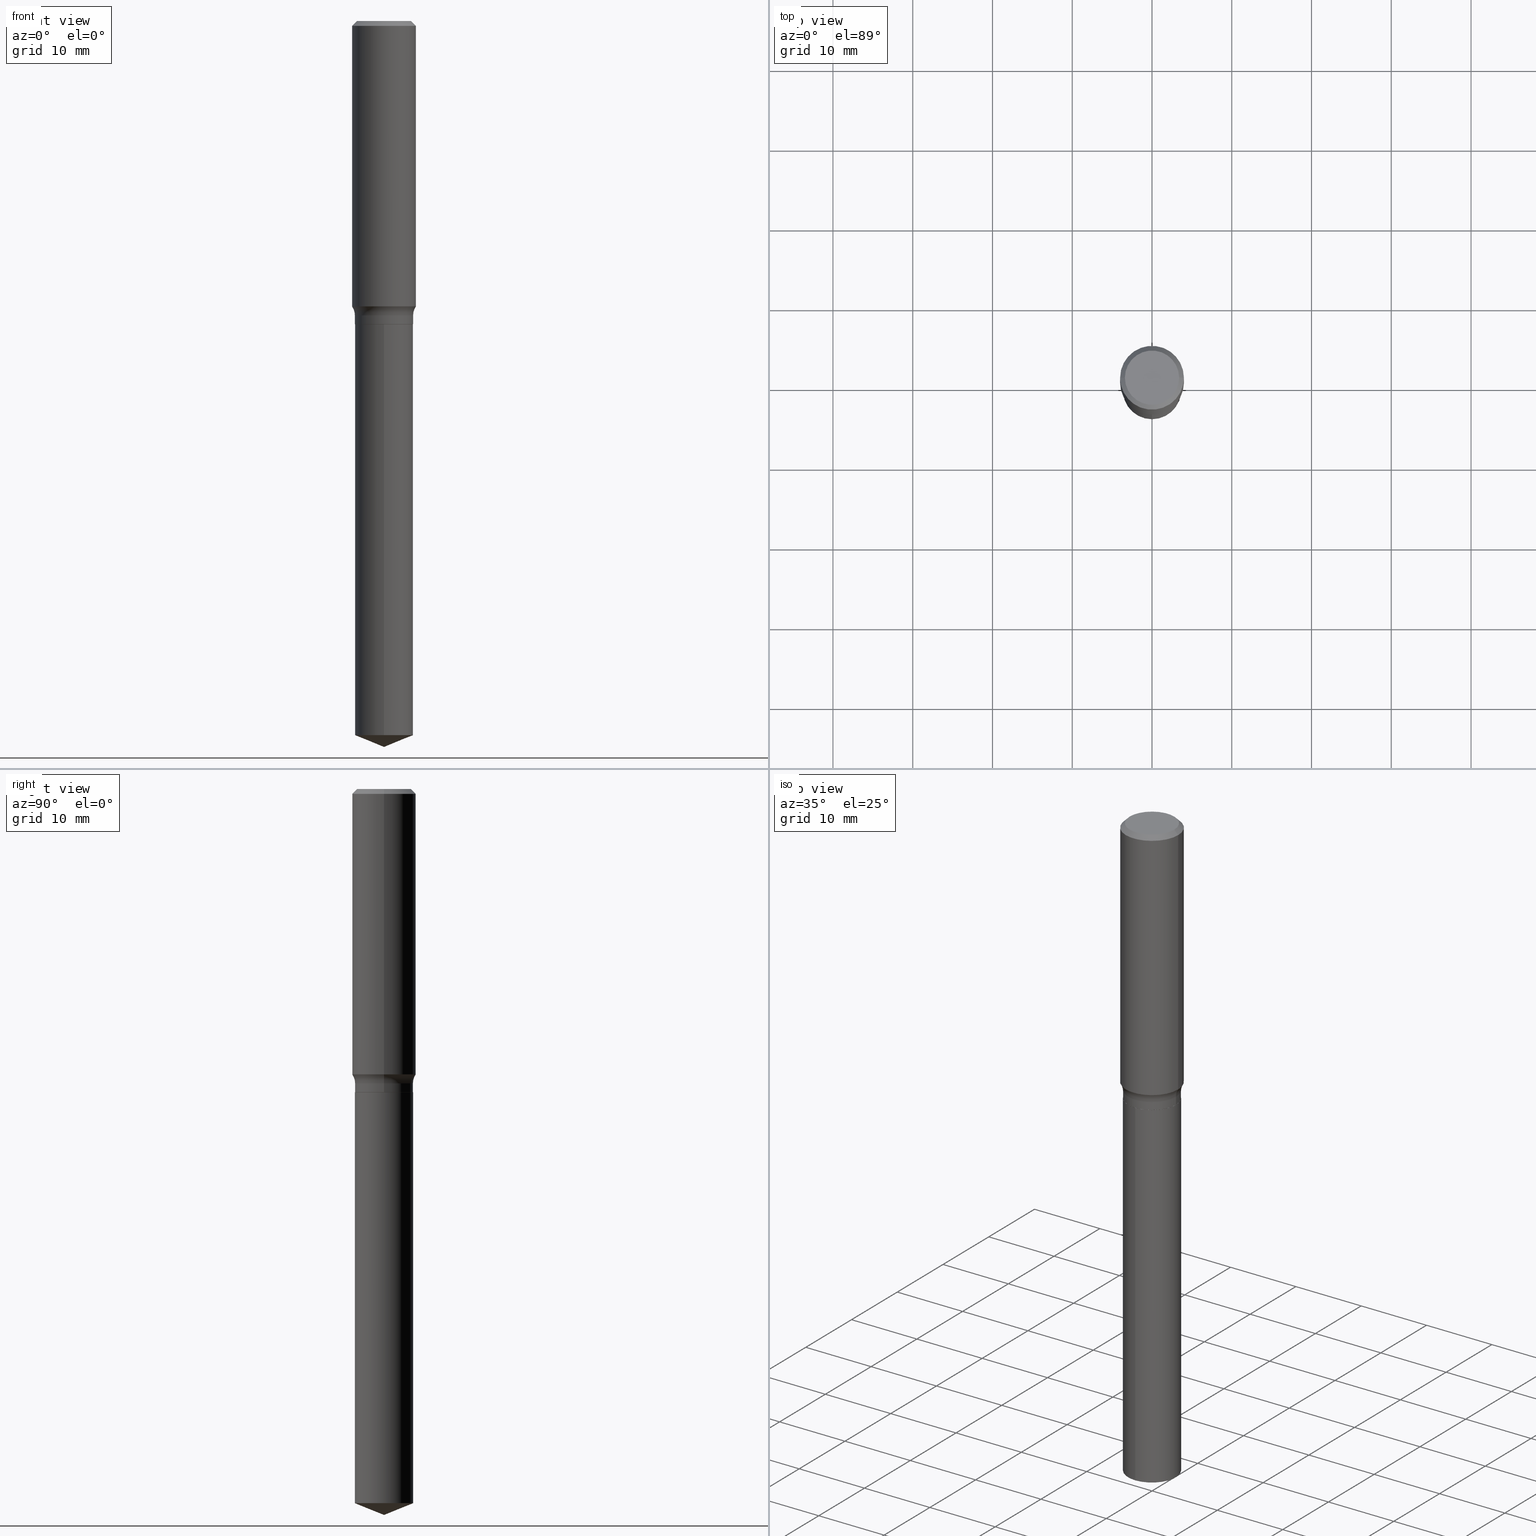
[diagram: canonical four-view strip — front | top / right | iso, engineering-drawing reading convention]
A machine part, canonical four-view strip (front | top / right | iso — engineering-drawing reading convention). The complete STEP part file that produces these views, byte-faithful:
ISO-10303-21;
HEADER;
FILE_DESCRIPTION (( 'STEP AP203' ),
    '1' );
FILE_NAME ('69266.STEP',
    '2024-04-19T17:34:59',
    ( '' ),
    ( '' ),
    'SwSTEP 2.0',
    'SolidWorks 2023',
    '' );
FILE_SCHEMA (( 'CONFIG_CONTROL_DESIGN' ));
ENDSEC;

DATA;
#1 = CARTESIAN_POINT ( 'NONE',  ( 3.659399521575439863E-29, -5.224652675444884140E-15, -1.496400000000000396 ) ) ;
#2 = CARTESIAN_POINT ( 'NONE',  ( 3.553021628506385193E-29, -5.072773237205206230E-15, -1.452899999999999858 ) ) ;
#3 = CC_DESIGN_DATE_AND_TIME_ASSIGNMENT ( #25, #13, ( #252 ) ) ;
#4 = DIRECTION ( 'NONE',  ( 1.000000000000000000, -6.982962677686265922E-15, 4.883557194083112340E-29 ) ) ;
#5 = EDGE_LOOP ( 'NONE', ( #73, #448 ) ) ;
#6 = ORIENTED_EDGE ( 'NONE', *, *, #370, .T. ) ;
#7 = ADVANCED_FACE ( 'NONE', ( #388 ), #238, .T. ) ;
#8 = CARTESIAN_POINT ( 'NONE',  ( -0.1575000000000000844, 1.119104808822158392E-15, -7.747322767151481189E-30 ) ) ;
#9 = CC_DESIGN_SECURITY_CLASSIFICATION ( #252, ( #218 ) ) ;
#10 = VERTEX_POINT ( 'NONE', #129 ) ;
#11 = DIRECTION ( 'NONE',  ( 1.000000000000000000, -6.982962677686265922E-15, 0.000000000000000000 ) ) ;
#12 = DIRECTION ( 'NONE',  ( -2.445468806185136597E-29, 3.491481338843145583E-15, 1.000000000000000000 ) ) ;
#13 = DATE_TIME_ROLE ( 'classification_date' ) ;
#14 = EDGE_CURVE ( 'NONE', #408, #345, #136, .T. ) ;
#15 = ORIENTED_EDGE ( 'NONE', *, *, #255, .F. ) ;
#16 = CARTESIAN_POINT ( 'NONE',  ( -1.002970424325032604E-46, 1.431975951230895391E-32, 4.101342130344482109E-18 ) ) ;
#17 = CC_DESIGN_PERSON_AND_ORGANIZATION_ASSIGNMENT ( #197, #439, ( #294 ) ) ;
#18 = CONICAL_SURFACE ( 'NONE', #348, 0.1575000000000000011, 0.7853981633974449483 ) ;
#19 = ORIENTED_EDGE ( 'NONE', *, *, #429, .F. ) ;
#20 = DIRECTION ( 'NONE',  ( 1.000000000000000000, -6.982962677686264344E-15, 0.000000000000000000 ) ) ;
#21 = CARTESIAN_POINT ( 'NONE',  ( 0.000000000000000000, 0.000000000000000000, 0.000000000000000000 ) ) ;
#22 = CARTESIAN_POINT ( 'NONE',  ( 3.659399521575439863E-29, -5.224652675444884140E-15, -1.496400000000000396 ) ) ;
#23 = ADVANCED_FACE ( 'NONE', ( #211 ), #186, .T. ) ;
#24 = AXIS2_PLACEMENT_3D ( 'NONE', #398, #217, #4 ) ;
#25 = DATE_AND_TIME ( #353, #33 ) ;
#26 = VECTOR ( 'NONE', #440, 39.37007874015748143 ) ;
#27 = CARTESIAN_POINT ( 'NONE',  ( 3.553021628506385193E-29, -5.072773237205206230E-15, -1.452899999999999858 ) ) ;
#28 = FACE_OUTER_BOUND ( 'NONE', #264, .T. ) ;
#29 = DIRECTION ( 'NONE',  ( -6.474490251793179418E-15, -0.9271838545667866471, 0.3746065934159141797 ) ) ;
#30 = ADVANCED_FACE ( 'NONE', ( #305 ), #270, .F. ) ;
#31 = DIRECTION ( 'NONE',  ( 1.000000000000000000, -6.982962677686265922E-15, 4.883557194083112340E-29 ) ) ;
#32 =( LENGTH_UNIT ( ) NAMED_UNIT ( * ) SI_UNIT ( $, .METRE. ) );
#33 = LOCAL_TIME ( 13, 34, 59.00000000000000000, #389 ) ;
#34 = EDGE_LOOP ( 'NONE', ( #344, #55, #226, #450 ) ) ;
#35 = ORIENTED_EDGE ( 'NONE', *, *, #206, .F. ) ;
#36 = DIRECTION ( 'NONE',  ( -2.445468806185136597E-29, 3.491481338843145583E-15, 1.000000000000000000 ) ) ;
#37 = VERTEX_POINT ( 'NONE', #378 ) ;
#38 = AXIS2_PLACEMENT_3D ( 'NONE', #199, #126, #20 ) ;
#39 = CARTESIAN_POINT ( 'NONE',  ( -0.1575000000000000011, 1.017330375105417098E-15, -0.02362500000000014588 ) ) ;
#40 = CARTESIAN_POINT ( 'NONE',  ( 5.777420054612421104E-31, -8.248624663016984002E-17, -0.02362500000000014588 ) ) ;
#41 = DIRECTION ( 'NONE',  ( 1.000000000000000000, -6.982962677686264344E-15, 0.000000000000000000 ) ) ;
#42 = EDGE_CURVE ( 'NONE', #148, #125, #142, .T. ) ;
#43 = ORIENTED_EDGE ( 'NONE', *, *, #327, .F. ) ;
#44 = CARTESIAN_POINT ( 'NONE',  ( 3.659399521575438742E-29, -5.224652675444883351E-15, -1.496400000000000174 ) ) ;
#45 = DIRECTION ( 'NONE',  ( -2.445445601509706497E-29, 3.491514569259089389E-15, 1.000000000000000000 ) ) ;
#46 = APPROVAL_STATUS ( 'not_yet_approved' ) ;
#47 = AXIS2_PLACEMENT_3D ( 'NONE', #402, #69, #481 ) ;
#48 = FACE_OUTER_BOUND ( 'NONE', #459, .T. ) ;
#49 = DIRECTION ( 'NONE',  ( -2.445445601509706497E-29, 3.491514569259089389E-15, 1.000000000000000000 ) ) ;
#50 = DIRECTION ( 'NONE',  ( 1.000000000000000000, -6.982962677686267499E-15, 0.000000000000000000 ) ) ;
#51 = PERSON_AND_ORGANIZATION_ROLE ( 'creator' ) ;
#52 = ORIENTED_EDGE ( 'NONE', *, *, #293, .T. ) ;
#53 = CARTESIAN_POINT ( 'NONE',  ( -0.1436999999999999944, 1.021049911287263927E-15, -7.068509724696298696E-30 ) ) ;
#54 = PERSON_AND_ORGANIZATION ( #414, #133 ) ;
#55 = ORIENTED_EDGE ( 'NONE', *, *, #359, .T. ) ;
#56 = ORIENTED_EDGE ( 'NONE', *, *, #468, .T. ) ;
#57 = MANIFOLD_SOLID_BREP ( 'Body-Move/Copy2[2]', #393 ) ;
#58 = VECTOR ( 'NONE', #425, 39.37007874015748143 ) ;
#59 = ORIENTED_EDGE ( 'NONE', *, *, #275, .F. ) ;
#60 = CARTESIAN_POINT ( 'NONE',  ( 0.1575000000000001676, -6.017922358655901068E-15, -1.408601467292922571 ) ) ;
#61 = EDGE_CURVE ( 'NONE', #10, #37, #257, .T. ) ;
#62 = DATE_AND_TIME ( #365, #446 ) ;
#63 = CARTESIAN_POINT ( 'NONE',  ( -0.1575000000000001676, -3.799000928098153617E-15, -1.408601467292922571 ) ) ;
#64 = AXIS2_PLACEMENT_3D ( 'NONE', #40, #445, #407 ) ;
#65 = DIRECTION ( 'NONE',  ( 0.000000000000000000, 0.000000000000000000, 1.000000000000000000 ) ) ;
#66 = CIRCLE ( 'NONE', #338, 0.1575000000000001676 ) ;
#67 = DIRECTION ( 'NONE',  ( 1.000000000000000000, -6.982962677686264344E-15, 0.000000000000000000 ) ) ;
#68 = ADVANCED_FACE ( 'NONE', ( #462 ), #120, .F. ) ;
#69 = DIRECTION ( 'NONE',  ( -2.445468806185136597E-29, 3.491481338843145583E-15, 1.000000000000000000 ) ) ;
#70 = AXIS2_PLACEMENT_3D ( 'NONE', #1, #145, #75 ) ;
#71 = EDGE_LOOP ( 'NONE', ( #392, #267, #181, #213 ) ) ;
#72 = ORIENTED_EDGE ( 'NONE', *, *, #244, .T. ) ;
#73 = ORIENTED_EDGE ( 'NONE', *, *, #391, .T. ) ;
#74 = DIRECTION ( 'NONE',  ( -2.445468806185136877E-29, 3.491481338843145188E-15, 1.000000000000000000 ) ) ;
#75 = DIRECTION ( 'NONE',  ( 1.000000000000000000, -6.982962677686268288E-15, 0.000000000000000000 ) ) ;
#76 = AXIS2_PLACEMENT_3D ( 'NONE', #351, #36, #11 ) ;
#77 = ADVANCED_FACE ( 'NONE', ( #375 ), #210, .T. ) ;
#78 = CARTESIAN_POINT ( 'NONE',  ( 3.444690948611454884E-29, -4.918105736920312010E-15, -1.408601467292922571 ) ) ;
#79 = ORIENTED_EDGE ( 'NONE', *, *, #146, .T. ) ;
#80 = LINE ( 'NONE', #39, #151 ) ;
#81 = DIRECTION ( 'NONE',  ( -2.438088387897960049E-29, 3.491481338843145188E-15, 1.000000000000000000 ) ) ;
#82 = DIRECTION ( 'NONE',  ( -2.445468806185136597E-29, 3.491481338843145583E-15, 1.000000000000000000 ) ) ;
#83 = LINE ( 'NONE', #53, #487 ) ;
#84 = AXIS2_PLACEMENT_3D ( 'NONE', #185, #379, #377 ) ;
#85 = VECTOR ( 'NONE', #277, 39.37007874015748143 ) ;
#86 = ORIENTED_EDGE ( 'NONE', *, *, #221, .T. ) ;
#87 = DATE_TIME_ROLE ( 'creation_date' ) ;
#88 = FACE_OUTER_BOUND ( 'NONE', #190, .T. ) ;
#89 = EDGE_LOOP ( 'NONE', ( #420, #306, #72, #111 ) ) ;
#90 = DIRECTION ( 'NONE',  ( -2.445445601509706497E-29, 3.491514569259089389E-15, 1.000000000000000000 ) ) ;
#91 = PERSON_AND_ORGANIZATION_ROLE ( 'classification_officer' ) ;
#92 = DIRECTION ( 'NONE',  ( 7.105427357601001859E-15, 1.000000000000000000, -3.491481338843145583E-15 ) ) ;
#93 = ORIENTED_EDGE ( 'NONE', *, *, #42, .F. ) ;
#94 = CC_DESIGN_DATE_AND_TIME_ASSIGNMENT ( #241, #87, ( #294 ) ) ;
#95 = DIRECTION ( 'NONE',  ( -2.445445601509706497E-29, 3.491514569259089389E-15, 1.000000000000000000 ) ) ;
#96 = ADVANCED_FACE ( 'NONE', ( #489 ), #447, .T. ) ;
#97 = AXIS2_PLACEMENT_3D ( 'NONE', #117, #95, #250 ) ;
#98 = LINE ( 'NONE', #254, #26 ) ;
#99 = DIRECTION ( 'NONE',  ( -1.000000000000000000, 6.982962677686265922E-15, 0.000000000000000000 ) ) ;
#100 = FACE_OUTER_BOUND ( 'NONE', #271, .T. ) ;
#101 = ADVANCED_FACE ( 'NONE', ( #242 ), #276, .T. ) ;
#102 = VECTOR ( 'NONE', #287, 39.37007874015748143 ) ;
#103 = TOROIDAL_SURFACE ( 'NONE', #422, 0.2216999999999999804, 0.07799999999999995826 ) ;
#104 = PRODUCT_DEFINITION_SHAPE ( 'NONE', 'NONE',  #294 ) ;
#105 = EDGE_CURVE ( 'NONE', #125, #148, #486, .T. ) ;
#106 = AXIS2_PLACEMENT_3D ( 'NONE', #166, #357, #319 ) ;
#107 = CIRCLE ( 'NONE', #304, 0.1436999999999999944 ) ;
#108 = VERTEX_POINT ( 'NONE', #473 ) ;
#109 = FACE_OUTER_BOUND ( 'NONE', #5, .T. ) ;
#110 = ORIENTED_EDGE ( 'NONE', *, *, #327, .T. ) ;
#111 = ORIENTED_EDGE ( 'NONE', *, *, #302, .F. ) ;
#112 = EDGE_CURVE ( 'NONE', #296, #148, #475, .T. ) ;
#113 = ORIENTED_EDGE ( 'NONE', *, *, #275, .T. ) ;
#114 = AXIS2_PLACEMENT_3D ( 'NONE', #413, #340, #411 ) ;
#115 = ORIENTED_EDGE ( 'NONE', *, *, #302, .T. ) ;
#116 = ORIENTED_EDGE ( 'NONE', *, *, #293, .F. ) ;
#117 = CARTESIAN_POINT ( 'NONE',  ( -8.751531957252333368E-28, 1.249511565384764858E-13, 35.78707874015748303 ) ) ;
#118 = SECURITY_CLASSIFICATION_LEVEL ( 'unclassified' ) ;
#119 = CARTESIAN_POINT ( 'NONE',  ( 0.2216999999999999804, -6.620896062848251604E-15, -1.452899999999999858 ) ) ;
#120 = PLANE ( 'NONE',  #412 ) ;
#121 = DIRECTION ( 'NONE',  ( 1.000000000000000000, -6.982962677686266711E-15, 4.876170806578254279E-29 ) ) ;
#122 = APPROVAL_DATE_TIME ( #314, #343 ) ;
#123 = AXIS2_PLACEMENT_3D ( 'NONE', #397, #201, #470 ) ;
#124 = VECTOR ( 'NONE', #29, 39.37007874015748143 ) ;
#125 = VERTEX_POINT ( 'NONE', #356 ) ;
#126 = DIRECTION ( 'NONE',  ( -2.445468806185136597E-29, 3.491481338843145583E-15, 1.000000000000000000 ) ) ;
#127 = APPLICATION_PROTOCOL_DEFINITION ( 'international standard', 'config_control_design', 1994, #403 ) ;
#128 = DIRECTION ( 'NONE',  ( 1.000000000000000000, -6.982962677686267499E-15, 4.876176775795936353E-29 ) ) ;
#129 = CARTESIAN_POINT ( 'NONE',  ( -0.1431999999999999940, -4.204506250662309516E-15, -1.496400000000000396 ) ) ;
#130 = ADVANCED_FACE ( 'NONE', ( #88 ), #315, .T. ) ;
#131 = DIRECTION ( 'NONE',  ( -6.982962677686265922E-15, -1.000000000000000000, 3.802154479699741047E-15 ) ) ;
#132 = AXIS2_PLACEMENT_3D ( 'NONE', #390, #92, #435 ) ;
#133 = ORGANIZATION ( 'UNSPECIFIED', 'UNSPECIFIED', '' ) ;
#134 = CALENDAR_DATE ( 2024, 19, 4 ) ;
#135 = DIRECTION ( 'NONE',  ( -6.982962677686265922E-15, -1.000000000000000000, 3.802154479699740259E-15 ) ) ;
#136 = CIRCLE ( 'NONE', #362, 0.1575000000000000011 ) ;
#137 = AXIS2_PLACEMENT_3D ( 'NONE', #191, #154, #228 ) ;
#138 =( NAMED_UNIT ( * ) PLANE_ANGLE_UNIT ( ) SI_UNIT ( $, .RADIAN. ) );
#139 = PRODUCT_RELATED_PRODUCT_CATEGORY ( 'detail', '', ( #328 ) ) ;
#140 = ORIENTED_EDGE ( 'NONE', *, *, #269, .F. ) ;
#141 = EDGE_CURVE ( 'NONE', #194, #152, #163, .T. ) ;
#142 = CIRCLE ( 'NONE', #239, 0.1436999999999999944 ) ;
#143 = AXIS2_PLACEMENT_3D ( 'NONE', #283, #90, #131 ) ;
#144 = ORIENTED_EDGE ( 'NONE', *, *, #410, .F. ) ;
#145 = DIRECTION ( 'NONE',  ( -2.445468806185136597E-29, 3.491481338843145583E-15, 1.000000000000000000 ) ) ;
#146 = EDGE_CURVE ( 'NONE', #10, #333, #465, .T. ) ;
#147 = DIRECTION ( 'NONE',  ( -2.445468806185136597E-29, 3.491481338843145583E-15, 1.000000000000000000 ) ) ;
#148 = VERTEX_POINT ( 'NONE', #245 ) ;
#149 = DIRECTION ( 'NONE',  ( 1.000000000000000000, -6.982962677686261977E-15, 0.000000000000000000 ) ) ;
#150 = DIRECTION ( 'NONE',  ( 1.000000000000000000, -6.982962677686268288E-15, 0.000000000000000000 ) ) ;
#151 = VECTOR ( 'NONE', #449, 39.37007874015748143 ) ;
#152 = VERTEX_POINT ( 'NONE', #205 ) ;
#153 = LOCAL_TIME ( 13, 34, 59.00000000000000000, #204 ) ;
#154 = DIRECTION ( 'NONE',  ( -2.445468806185136597E-29, 3.491481338843145583E-15, 1.000000000000000000 ) ) ;
#155 = PERSON_AND_ORGANIZATION ( #414, #133 ) ;
#156 = CC_DESIGN_PERSON_AND_ORGANIZATION_ASSIGNMENT ( #155, #214, ( #328 ) ) ;
#157 = DIRECTION ( 'NONE',  ( 1.000000000000000000, -6.982962677686268288E-15, 0.000000000000000000 ) ) ;
#158 = PERSON_AND_ORGANIZATION ( #414, #133 ) ;
#159 = DIRECTION ( 'NONE',  ( -2.445445601509706497E-29, 3.491514569259089389E-15, 1.000000000000000000 ) ) ;
#160 = ORIENTED_EDGE ( 'NONE', *, *, #167, .F. ) ;
#161 = CARTESIAN_POINT ( 'NONE',  ( -0.1575000000000000011, -1.381191182953082113E-15, -0.02362500000000014588 ) ) ;
#162 = APPROVAL_ROLE ( '' ) ;
#163 = CIRCLE ( 'NONE', #132, 0.07799999999999995826 ) ;
#164 = LINE ( 'NONE', #326, #329 ) ;
#165 = CC_DESIGN_APPROVAL ( #173, ( #294 ) ) ;
#166 = CARTESIAN_POINT ( 'NONE',  ( 3.659399521575438742E-29, -5.224652675444883351E-15, -1.496400000000000174 ) ) ;
#167 = EDGE_CURVE ( 'NONE', #37, #108, #164, .T. ) ;
#168 = CARTESIAN_POINT ( 'NONE',  ( -0.1436999999999999944, -4.126790174703070506E-15, -1.495900000000000230 ) ) ;
#169 = CC_DESIGN_PERSON_AND_ORGANIZATION_ASSIGNMENT ( #387, #51, ( #218 ) ) ;
#170 = DIRECTION ( 'NONE',  ( -6.982962677686265922E-15, -1.000000000000000000, 3.802154479699741047E-15 ) ) ;
#171 = DIRECTION ( 'NONE',  ( 1.000000000000000000, -6.982962677686266711E-15, 4.876176775795935793E-29 ) ) ;
#172 = CIRCLE ( 'NONE', #456, 0.1338749999999999940 ) ;
#173 = APPROVAL ( #274, 'UNSPECIFIED' ) ;
#174 = CARTESIAN_POINT ( 'NONE',  ( 3.658176787172346501E-29, -5.222906934775461847E-15, -1.495900000000000230 ) ) ;
#175 = CYLINDRICAL_SURFACE ( 'NONE', #178, 0.1436999999999999944 ) ;
#176 =( NAMED_UNIT ( * ) SI_UNIT ( $, .STERADIAN. ) SOLID_ANGLE_UNIT ( ) );
#177 = LINE ( 'NONE', #396, #124 ) ;
#178 = AXIS2_PLACEMENT_3D ( 'NONE', #482, #436, #135 ) ;
#179 = CIRCLE ( 'NONE', #38, 0.1436999999999999944 ) ;
#180 = ADVANCED_FACE ( 'NONE', ( #28 ), #175, .T. ) ;
#181 = ORIENTED_EDGE ( 'NONE', *, *, #167, .T. ) ;
#182 = EDGE_LOOP ( 'NONE', ( #426, #490 ) ) ;
#183 = ORIENTED_EDGE ( 'NONE', *, *, #479, .T. ) ;
#184 = ADVANCED_FACE ( 'NONE', ( #100 ), #453, .F. ) ;
#185 = CARTESIAN_POINT ( 'NONE',  ( -5.014852121625163022E-47, 7.159879756154476955E-33, 2.050671065172241055E-18 ) ) ;
#186 = CONICAL_SURFACE ( 'NONE', #265, 0.1431999999999999940, 0.7853981633972775267 ) ;
#187 = ORIENTED_EDGE ( 'NONE', *, *, #221, .F. ) ;
#188 = VECTOR ( 'NONE', #208, 39.37007874015748143 ) ;
#189 = CARTESIAN_POINT ( 'NONE',  ( -0.1338749999999999940, 9.760872517903331886E-16, 4.101342130337800673E-18 ) ) ;
#190 = EDGE_LOOP ( 'NONE', ( #471, #263, #116, #416 ) ) ;
#191 = CARTESIAN_POINT ( 'NONE',  ( -1.002970424325032604E-46, 1.431975951230895391E-32, 4.101342130344482109E-18 ) ) ;
#192 = CC_DESIGN_PERSON_AND_ORGANIZATION_ASSIGNMENT ( #361, #281, ( #218 ) ) ;
#193 = CARTESIAN_POINT ( 'NONE',  ( 0.1436999999999999944, -1.003451736783516539E-15, 7.007066026818759432E-30 ) ) ;
#194 = VERTEX_POINT ( 'NONE', #63 ) ;
#195 = ORIENTED_EDGE ( 'NONE', *, *, #206, .T. ) ;
#196 = EDGE_CURVE ( 'NONE', #339, #200, #251, .T. ) ;
#197 = PERSON_AND_ORGANIZATION ( #414, #133 ) ;
#198 = DIRECTION ( 'NONE',  ( -6.982962677686265922E-15, -1.000000000000000000, 3.802154479699740259E-15 ) ) ;
#199 = CARTESIAN_POINT ( 'NONE',  ( 3.553021628506385193E-29, -5.072773237205206230E-15, -1.452899999999999858 ) ) ;
#200 = VERTEX_POINT ( 'NONE', #417 ) ;
#201 = DIRECTION ( 'NONE',  ( -2.445445601509706497E-29, 3.491514569259089389E-15, 1.000000000000000000 ) ) ;
#202 = ORIENTED_EDGE ( 'NONE', *, *, #196, .F. ) ;
#203 = DIRECTION ( 'NONE',  ( 1.000000000000000000, -6.982962677686266711E-15, 4.876176775795935793E-29 ) ) ;
#204 = COORDINATED_UNIVERSAL_TIME_OFFSET ( 5, 0, .BEHIND. ) ;
#205 = CARTESIAN_POINT ( 'NONE',  ( -0.1436999999999999944, -4.126790174703070506E-15, -1.452899999999999858 ) ) ;
#206 = EDGE_CURVE ( 'NONE', #249, #408, #80, .T. ) ;
#207 = ORIENTED_EDGE ( 'NONE', *, *, #105, .T. ) ;
#208 = DIRECTION ( 'NONE',  ( -2.445445601509706497E-29, 3.491514569259089389E-15, 1.000000000000000000 ) ) ;
#209 = EDGE_LOOP ( 'NONE', ( #342, #372, #195, #313 ) ) ;
#210 = CONICAL_SURFACE ( 'NONE', #64, 0.1575000000000000011, 0.7853981633974449483 ) ;
#211 = FACE_OUTER_BOUND ( 'NONE', #298, .T. ) ;
#212 = CARTESIAN_POINT ( 'NONE',  ( -1.003451736783479660E-15, -0.1437000000000052125, -1.496399999999999730 ) ) ;
#213 = ORIENTED_EDGE ( 'NONE', *, *, #485, .F. ) ;
#214 = PERSON_AND_ORGANIZATION_ROLE ( 'design_owner' ) ;
#215 = DIRECTION ( 'NONE',  ( -2.445468806185136597E-29, 3.491481338843145583E-15, 1.000000000000000000 ) ) ;
#216 = ADVANCED_BREP_SHAPE_REPRESENTATION ( '69266', ( #220, #57, #330 ), #223 ) ;
#217 = DIRECTION ( 'NONE',  ( -2.445468806185136597E-29, 3.491481338843145583E-15, 1.000000000000000000 ) ) ;
#218 = PRODUCT_DEFINITION_FORMATION_WITH_SPECIFIED_SOURCE ( 'ANY', '', #328, .NOT_KNOWN. ) ;
#219 = DIMENSIONAL_EXPONENTS ( 1.000000000000000000, 0.000000000000000000, 0.000000000000000000, 0.000000000000000000, 0.000000000000000000, 0.000000000000000000, 0.000000000000000000 ) ;
#220 = MANIFOLD_SOLID_BREP ( 'Body-Move/Copy2[1]', #400 ) ;
#221 = EDGE_CURVE ( 'NONE', #349, #296, #233, .T. ) ;
#222 = VECTOR ( 'NONE', #303, 39.37007874015748143 ) ;
#223 =( GEOMETRIC_REPRESENTATION_CONTEXT ( 3 ) GLOBAL_UNCERTAINTY_ASSIGNED_CONTEXT ( ( #331 ) ) GLOBAL_UNIT_ASSIGNED_CONTEXT ( ( #478, #138, #176 ) ) REPRESENTATION_CONTEXT ( 'NONE', 'WORKASPACE' ) );
#224 = ORIENTED_EDGE ( 'NONE', *, *, #112, .F. ) ;
#225 = ORIENTED_EDGE ( 'NONE', *, *, #405, .T. ) ;
#226 = ORIENTED_EDGE ( 'NONE', *, *, #370, .F. ) ;
#227 = ORIENTED_EDGE ( 'NONE', *, *, #410, .T. ) ;
#228 = DIRECTION ( 'NONE',  ( 1.000000000000000000, -6.982962677686266711E-15, 4.876170806578254279E-29 ) ) ;
#229 = DIRECTION ( 'NONE',  ( 6.982962677686265922E-15, 1.000000000000000000, -3.491514569259089389E-15 ) ) ;
#230 = AXIS2_PLACEMENT_3D ( 'NONE', #418, #81, #235 ) ;
#231 = APPROVAL_PERSON_ORGANIZATION ( #248, #332, #461 ) ;
#232 = CARTESIAN_POINT ( 'NONE',  ( 1.021049911287349913E-15, 0.1436999999999876709, -3.524941431347488496 ) ) ;
#233 = LINE ( 'NONE', #237, #432 ) ;
#234 = ADVANCED_FACE ( 'NONE', ( #109 ), #310, .F. ) ;
#235 = DIRECTION ( 'NONE',  ( 1.000000000000000000, -6.982962677686265922E-15, 4.876176775795935793E-29 ) ) ;
#236 = APPLICATION_PROTOCOL_DEFINITION ( 'international standard', 'config_control_design', 1994, #358 ) ;
#237 = CARTESIAN_POINT ( 'NONE',  ( 8.762101646129704419E-29, -1.250999724966648130E-14, -3.583000000000000185 ) ) ;
#238 = CYLINDRICAL_SURFACE ( 'NONE', #106, 0.1436999999999999944 ) ;
#239 = AXIS2_PLACEMENT_3D ( 'NONE', #44, #49, #198 ) ;
#240 = CC_DESIGN_APPROVAL ( #332, ( #218 ) ) ;
#241 = DATE_AND_TIME ( #424, #454 ) ;
#242 = FACE_OUTER_BOUND ( 'NONE', #488, .T. ) ;
#243 = EDGE_LOOP ( 'NONE', ( #467, #86, #334 ) ) ;
#244 = EDGE_CURVE ( 'NONE', #108, #200, #409, .T. ) ;
#245 = CARTESIAN_POINT ( 'NONE',  ( 1.021049911287350505E-15, 0.1436999999999947486, -1.496400000000000841 ) ) ;
#246 = EDGE_LOOP ( 'NONE', ( #140, #261, #52, #35 ) ) ;
#247 = CYLINDRICAL_SURFACE ( 'NONE', #260, 0.1436999999999999944 ) ;
#248 = PERSON_AND_ORGANIZATION ( #414, #133 ) ;
#249 = VERTEX_POINT ( 'NONE', #189 ) ;
#250 = DIRECTION ( 'NONE',  ( -6.982962677686266711E-15, -1.000000000000000000, 3.498761904101824797E-15 ) ) ;
#251 = CIRCLE ( 'NONE', #367, 0.07799999999999995826 ) ;
#252 = SECURITY_CLASSIFICATION ( '', '', #118 ) ;
#253 = CIRCLE ( 'NONE', #266, 0.1431999999999999940 ) ;
#254 = CARTESIAN_POINT ( 'NONE',  ( 0.1575000000000000011, -1.163014681279185964E-15, -0.02362500000000014588 ) ) ;
#255 = EDGE_CURVE ( 'NONE', #194, #408, #346, .T. ) ;
#256 = APPROVAL_DATE_TIME ( #399, #173 ) ;
#257 = CIRCLE ( 'NONE', #441, 0.1431999999999999940 ) ;
#258 = ADVANCED_FACE ( 'NONE', ( #48 ), #301, .T. ) ;
#259 = DIRECTION ( 'NONE',  ( 1.000000000000000000, -6.982962677686268288E-15, 0.000000000000000000 ) ) ;
#260 = AXIS2_PLACEMENT_3D ( 'NONE', #322, #472, #203 ) ;
#261 = ORIENTED_EDGE ( 'NONE', *, *, #419, .T. ) ;
#262 = CARTESIAN_POINT ( 'NONE',  ( 0.1338749999999999940, -1.040731925365424925E-15, 4.101342130351390035E-18 ) ) ;
#263 = ORIENTED_EDGE ( 'NONE', *, *, #255, .T. ) ;
#264 = EDGE_LOOP ( 'NONE', ( #316, #308, #371, #43 ) ) ;
#265 = AXIS2_PLACEMENT_3D ( 'NONE', #311, #82, #150 ) ;
#266 = AXIS2_PLACEMENT_3D ( 'NONE', #22, #442, #259 ) ;
#267 = ORIENTED_EDGE ( 'NONE', *, *, #61, .T. ) ;
#268 = CC_DESIGN_APPROVAL ( #343, ( #252 ) ) ;
#269 = EDGE_CURVE ( 'NONE', #280, #249, #466, .T. ) ;
#270 = PLANE ( 'NONE',  #230 ) ;
#271 = EDGE_LOOP ( 'NONE', ( #385, #336, #452, #6 ) ) ;
#272 = DIRECTION ( 'NONE',  ( 1.000000000000000000, -6.982962677686265922E-15, 0.000000000000000000 ) ) ;
#273 = CARTESIAN_POINT ( 'NONE',  ( 0.1575000000000000011, -1.182302868365756679E-15, -0.02362500000000014588 ) ) ;
#274 = APPROVAL_STATUS ( 'not_yet_approved' ) ;
#275 = EDGE_CURVE ( 'NONE', #194, #339, #66, .T. ) ;
#276 = CONICAL_SURFACE ( 'NONE', #317, 97.44436430772850599, 1.186823891356145300 ) ;
#277 = DIRECTION ( 'NONE',  ( -2.445468806185136877E-29, 3.491481338843145188E-15, 1.000000000000000000 ) ) ;
#278 = COORDINATED_UNIVERSAL_TIME_OFFSET ( 5, 0, .BEHIND. ) ;
#279 = CARTESIAN_POINT ( 'NONE',  ( -0.1431999999999999940, -4.207155477836420717E-15, -1.496400000000000396 ) ) ;
#280 = VERTEX_POINT ( 'NONE', #262 ) ;
#281 = PERSON_AND_ORGANIZATION_ROLE ( 'design_supplier' ) ;
#282 = CARTESIAN_POINT ( 'NONE',  ( 5.777420054612421104E-31, -8.248624663016984002E-17, -0.02362500000000014588 ) ) ;
#283 = CARTESIAN_POINT ( 'NONE',  ( 8.620087242344358148E-29, -1.230733463734032578E-14, -3.524941431347488052 ) ) ;
#284 = CARTESIAN_POINT ( 'NONE',  ( 0.000000000000000000, 0.000000000000000000, 0.000000000000000000 ) ) ;
#285 = CARTESIAN_POINT ( 'NONE',  ( 3.444690948611454884E-29, -4.918105736920312010E-15, -1.408601467292922571 ) ) ;
#286 = CIRCLE ( 'NONE', #300, 0.1436999999999999666 ) ;
#287 = DIRECTION ( 'NONE',  ( -2.445445601509706497E-29, 3.491514569259089389E-15, 1.000000000000000000 ) ) ;
#288 = DIRECTION ( 'NONE',  ( 2.445468806185136597E-29, -3.491481338843145583E-15, -1.000000000000000000 ) ) ;
#289 = DIRECTION ( 'NONE',  ( -2.445468806185136597E-29, 3.491481338843145583E-15, 1.000000000000000000 ) ) ;
#290 = FACE_OUTER_BOUND ( 'NONE', #246, .T. ) ;
#291 = COORDINATED_UNIVERSAL_TIME_OFFSET ( 5, 0, .BEHIND. ) ;
#292 = DIRECTION ( 'NONE',  ( -2.445468806185136597E-29, 3.491481338843145583E-15, 1.000000000000000000 ) ) ;
#293 = EDGE_CURVE ( 'NONE', #345, #408, #295, .T. ) ;
#294 = PRODUCT_DEFINITION ( 'UNKNOWN', '', #218, #404 ) ;
#295 = CIRCLE ( 'NONE', #76, 0.1575000000000000011 ) ;
#296 = VERTEX_POINT ( 'NONE', #232 ) ;
#297 = DIRECTION ( 'NONE',  ( 2.445445601509706217E-29, -3.491514569259089389E-15, -1.000000000000000000 ) ) ;
#298 = EDGE_LOOP ( 'NONE', ( #56, #79, #19, #160 ) ) ;
#299 = ADVANCED_FACE ( 'NONE', ( #337 ), #395, .T. ) ;
#300 = AXIS2_PLACEMENT_3D ( 'NONE', #320, #45, #170 ) ;
#301 = CYLINDRICAL_SURFACE ( 'NONE', #114, 0.1575000000000000844 ) ;
#302 = EDGE_CURVE ( 'NONE', #152, #200, #324, .T. ) ;
#303 = DIRECTION ( 'NONE',  ( -2.445468806185136877E-29, 3.491481338843145188E-15, 1.000000000000000000 ) ) ;
#304 = AXIS2_PLACEMENT_3D ( 'NONE', #174, #215, #67 ) ;
#305 = FACE_OUTER_BOUND ( 'NONE', #182, .T. ) ;
#306 = ORIENTED_EDGE ( 'NONE', *, *, #485, .T. ) ;
#307 = DIRECTION ( 'NONE',  ( -2.445468806185136597E-29, 3.491481338843145583E-15, 1.000000000000000000 ) ) ;
#308 = ORIENTED_EDGE ( 'NONE', *, *, #112, .T. ) ;
#309 = CALENDAR_DATE ( 2024, 19, 4 ) ;
#310 = PLANE ( 'NONE',  #84 ) ;
#311 = CARTESIAN_POINT ( 'NONE',  ( 3.659399521575439863E-29, -5.224652675444884140E-15, -1.496400000000000396 ) ) ;
#312 = DIRECTION ( 'NONE',  ( -2.445468806185136597E-29, 3.491481338843145583E-15, 1.000000000000000000 ) ) ;
#313 = ORIENTED_EDGE ( 'NONE', *, *, #14, .T. ) ;
#314 = DATE_AND_TIME ( #134, #153 ) ;
#315 = CYLINDRICAL_SURFACE ( 'NONE', #347, 0.1575000000000000844 ) ;
#316 = ORIENTED_EDGE ( 'NONE', *, *, #341, .T. ) ;
#317 = AXIS2_PLACEMENT_3D ( 'NONE', #360, #159, #323 ) ;
#318 = AXIS2_PLACEMENT_3D ( 'NONE', #285, #355, #50 ) ;
#319 = DIRECTION ( 'NONE',  ( -6.982962677686265922E-15, -1.000000000000000000, 3.802154479699740259E-15 ) ) ;
#320 = CARTESIAN_POINT ( 'NONE',  ( 8.620087242344358148E-29, -1.230733463734032578E-14, -3.524941431347488052 ) ) ;
#321 = EDGE_LOOP ( 'NONE', ( #59, #369, #115, #202 ) ) ;
#322 = CARTESIAN_POINT ( 'NONE',  ( 0.000000000000000000, 0.000000000000000000, 0.000000000000000000 ) ) ;
#323 = DIRECTION ( 'NONE',  ( -6.982962677686266711E-15, -1.000000000000000000, 3.498761904101824797E-15 ) ) ;
#324 = CIRCLE ( 'NONE', #433, 0.1436999999999999944 ) ;
#325 = DIRECTION ( 'NONE',  ( 1.000000000000000000, 0.000000000000000000, 0.000000000000000000 ) ) ;
#326 = CARTESIAN_POINT ( 'NONE',  ( 0.1431999999999999940, -6.224612930889557672E-15, -1.496400000000000396 ) ) ;
#327 = EDGE_CURVE ( 'NONE', #421, #125, #460, .T. ) ;
#328 = PRODUCT ( '69266', '69266', '', ( #428 ) ) ;
#329 = VECTOR ( 'NONE', #364, 39.37007874015748143 ) ;
#330 = AXIS2_PLACEMENT_3D ( 'NONE', #464, #65, #325 ) ;
#331 = UNCERTAINTY_MEASURE_WITH_UNIT (LENGTH_MEASURE( 1.000000000000000082E-05 ), #478, 'distance_accuracy_value', 'NONE');
#332 = APPROVAL ( #46, 'UNSPECIFIED' ) ;
#333 = VERTEX_POINT ( 'NONE', #168 ) ;
#334 = ORIENTED_EDGE ( 'NONE', *, *, #341, .F. ) ;
#335 = ADVANCED_FACE ( 'NONE', ( #386 ), #415, .T. ) ;
#336 = ORIENTED_EDGE ( 'NONE', *, *, #383, .F. ) ;
#337 = FACE_OUTER_BOUND ( 'NONE', #71, .T. ) ;
#338 = AXIS2_PLACEMENT_3D ( 'NONE', #78, #307, #374 ) ;
#339 = VERTEX_POINT ( 'NONE', #60 ) ;
#340 = DIRECTION ( 'NONE',  ( -2.445468806185136597E-29, 3.491481338843145583E-15, 1.000000000000000000 ) ) ;
#341 = EDGE_CURVE ( 'NONE', #421, #296, #286, .T. ) ;
#342 = ORIENTED_EDGE ( 'NONE', *, *, #419, .F. ) ;
#343 = APPROVAL ( #480, 'UNSPECIFIED' ) ;
#344 = ORIENTED_EDGE ( 'NONE', *, *, #429, .T. ) ;
#345 = VERTEX_POINT ( 'NONE', #273 ) ;
#346 = LINE ( 'NONE', #8, #476 ) ;
#347 = AXIS2_PLACEMENT_3D ( 'NONE', #284, #431, #128 ) ;
#348 = AXIS2_PLACEMENT_3D ( 'NONE', #366, #288, #99 ) ;
#349 = VERTEX_POINT ( 'NONE', #474 ) ;
#350 = APPROVAL_ROLE ( '' ) ;
#351 = CARTESIAN_POINT ( 'NONE',  ( 5.777420054612421104E-31, -8.248624663016984002E-17, -0.02362500000000014588 ) ) ;
#352 = CARTESIAN_POINT ( 'NONE',  ( 3.659399521575439863E-29, -5.224652675444884140E-15, -1.496400000000000396 ) ) ;
#353 = CALENDAR_DATE ( 2024, 19, 4 ) ;
#354 = CARTESIAN_POINT ( 'NONE',  ( 1.021049911287300412E-15, 0.1436999999999947764, -1.496400000000000841 ) ) ;
#355 = DIRECTION ( 'NONE',  ( -2.445468806185136597E-29, 3.491481338843145583E-15, 1.000000000000000000 ) ) ;
#356 = CARTESIAN_POINT ( 'NONE',  ( -1.003451736783479660E-15, -0.1437000000000052125, -1.496399999999999730 ) ) ;
#357 = DIRECTION ( 'NONE',  ( -2.445445601509706497E-29, 3.491514569259089389E-15, 1.000000000000000000 ) ) ;
#358 = APPLICATION_CONTEXT ( 'configuration controlled 3d designs of mechanical parts and assemblies' ) ;
#359 = EDGE_CURVE ( 'NONE', #333, #152, #83, .T. ) ;
#360 = CARTESIAN_POINT ( 'NONE',  ( -8.751531957252333368E-28, 1.249511565384764858E-13, 35.78707874015748303 ) ) ;
#361 = PERSON_AND_ORGANIZATION ( #414, #133 ) ;
#362 = AXIS2_PLACEMENT_3D ( 'NONE', #282, #381, #272 ) ;
#363 = CIRCLE ( 'NONE', #47, 0.1436999999999999944 ) ;
#364 = DIRECTION ( 'NONE',  ( 0.7071067811864267805, -2.468850131080992517E-15, 0.7071067811866682540 ) ) ;
#365 = CALENDAR_DATE ( 2024, 19, 4 ) ;
#366 = CARTESIAN_POINT ( 'NONE',  ( 5.777420054612421104E-31, -8.248624663016984002E-17, -0.02362500000000014588 ) ) ;
#367 = AXIS2_PLACEMENT_3D ( 'NONE', #119, #455, #149 ) ;
#368 = APPROVAL_PERSON_ORGANIZATION ( #158, #343, #162 ) ;
#369 = ORIENTED_EDGE ( 'NONE', *, *, #141, .T. ) ;
#370 = EDGE_CURVE ( 'NONE', #200, #152, #179, .T. ) ;
#371 = ORIENTED_EDGE ( 'NONE', *, *, #105, .F. ) ;
#372 = ORIENTED_EDGE ( 'NONE', *, *, #391, .F. ) ;
#373 = ADVANCED_FACE ( 'NONE', ( #463 ), #247, .T. ) ;
#374 = DIRECTION ( 'NONE',  ( 1.000000000000000000, -6.982962677686267499E-15, 0.000000000000000000 ) ) ;
#375 = FACE_OUTER_BOUND ( 'NONE', #209, .T. ) ;
#376 = EDGE_LOOP ( 'NONE', ( #207, #457 ) ) ;
#377 = DIRECTION ( 'NONE',  ( -1.000000000000000000, 6.982962677686265922E-15, -4.876176775795935793E-29 ) ) ;
#378 = CARTESIAN_POINT ( 'NONE',  ( 0.1431999999999999940, -6.224612930889557672E-15, -1.496400000000000396 ) ) ;
#379 = DIRECTION ( 'NONE',  ( 2.438088387897960049E-29, -3.491481338843145188E-15, -1.000000000000000000 ) ) ;
#380 = LOCAL_TIME ( 13, 34, 59.00000000000000000, #291 ) ;
#381 = DIRECTION ( 'NONE',  ( -2.445468806185136597E-29, 3.491481338843145583E-15, 1.000000000000000000 ) ) ;
#382 = DIRECTION ( 'NONE',  ( -2.445468806185136877E-29, 3.491481338843145188E-15, 1.000000000000000000 ) ) ;
#383 = EDGE_CURVE ( 'NONE', #339, #194, #406, .T. ) ;
#384 = APPROVAL_DATE_TIME ( #62, #332 ) ;
#385 = ORIENTED_EDGE ( 'NONE', *, *, #141, .F. ) ;
#386 = FACE_OUTER_BOUND ( 'NONE', #243, .T. ) ;
#387 = PERSON_AND_ORGANIZATION ( #414, #133 ) ;
#388 = FACE_OUTER_BOUND ( 'NONE', #430, .T. ) ;
#389 = COORDINATED_UNIVERSAL_TIME_OFFSET ( 5, 0, .BEHIND. ) ;
#390 = CARTESIAN_POINT ( 'NONE',  ( -0.2216999999999999804, -3.497499992025064454E-15, -1.452899999999999858 ) ) ;
#391 = EDGE_CURVE ( 'NONE', #249, #280, #172, .T. ) ;
#392 = ORIENTED_EDGE ( 'NONE', *, *, #146, .F. ) ;
#393 = CLOSED_SHELL ( 'NONE', ( #23, #443, #130, #458, #96, #373, #184, #258, #77, #234, #30, #299 ) ) ;
#394 = CC_DESIGN_PERSON_AND_ORGANIZATION_ASSIGNMENT ( #54, #91, ( #252 ) ) ;
#395 = CONICAL_SURFACE ( 'NONE', #70, 0.1431999999999999940, 0.7853981633972775267 ) ;
#396 = CARTESIAN_POINT ( 'NONE',  ( 8.762031590209278139E-29, -1.251009670165531742E-14, -3.583000000000000185 ) ) ;
#397 = CARTESIAN_POINT ( 'NONE',  ( 3.659399521575438742E-29, -5.224652675444883351E-15, -1.496400000000000174 ) ) ;
#398 = CARTESIAN_POINT ( 'NONE',  ( 3.553021628506385193E-29, -5.072773237205206230E-15, -1.452899999999999858 ) ) ;
#399 = DATE_AND_TIME ( #309, #380 ) ;
#400 = CLOSED_SHELL ( 'NONE', ( #180, #335, #101, #7, #68 ) ) ;
#401 = CARTESIAN_POINT ( 'NONE',  ( -1.003451736783430159E-15, -0.1437000000000122901, -3.524941431347487608 ) ) ;
#402 = CARTESIAN_POINT ( 'NONE',  ( 3.658176787172346501E-29, -5.222906934775461847E-15, -1.495900000000000230 ) ) ;
#403 = APPLICATION_CONTEXT ( 'configuration controlled 3d designs of mechanical parts and assemblies' ) ;
#404 = DESIGN_CONTEXT ( 'detailed design', #403, 'design' ) ;
#405 = EDGE_CURVE ( 'NONE', #339, #345, #427, .T. ) ;
#406 = CIRCLE ( 'NONE', #318, 0.1575000000000001676 ) ;
#407 = DIRECTION ( 'NONE',  ( -1.000000000000000000, 6.982962677686265922E-15, 0.000000000000000000 ) ) ;
#408 = VERTEX_POINT ( 'NONE', #161 ) ;
#409 = LINE ( 'NONE', #193, #222 ) ;
#410 = EDGE_CURVE ( 'NONE', #296, #421, #492, .T. ) ;
#411 = DIRECTION ( 'NONE',  ( 1.000000000000000000, -6.982962677686267499E-15, 4.876176775795936353E-29 ) ) ;
#412 = AXIS2_PLACEMENT_3D ( 'NONE', #423, #297, #229 ) ;
#413 = CARTESIAN_POINT ( 'NONE',  ( 0.000000000000000000, 0.000000000000000000, 0.000000000000000000 ) ) ;
#414 = PERSON ( 'UNSPECIFIED', 'UNSPECIFIED', 'UNSPECIFIED', ('UNSPECIFIED'), ('UNSPECIFIED'), ('UNSPECIFIED') ) ;
#415 = CONICAL_SURFACE ( 'NONE', #97, 97.44436430772850599, 1.186823891356145300 ) ;
#416 = ORIENTED_EDGE ( 'NONE', *, *, #405, .F. ) ;
#417 = CARTESIAN_POINT ( 'NONE',  ( 0.1436999999999999944, -6.076224973988722769E-15, -1.452899999999999858 ) ) ;
#418 = CARTESIAN_POINT ( 'NONE',  ( 1.665969782887356156E-29, -8.079357520220864542E-15, -1.496400000000000396 ) ) ;
#419 = EDGE_CURVE ( 'NONE', #280, #345, #98, .T. ) ;
#420 = ORIENTED_EDGE ( 'NONE', *, *, #359, .F. ) ;
#421 = VERTEX_POINT ( 'NONE', #401 ) ;
#422 = AXIS2_PLACEMENT_3D ( 'NONE', #27, #292, #31 ) ;
#423 = CARTESIAN_POINT ( 'NONE',  ( 3.659399521575438742E-29, -5.224652675444883351E-15, -1.496400000000000174 ) ) ;
#424 = CALENDAR_DATE ( 2024, 19, 4 ) ;
#425 = DIRECTION ( 'NONE',  ( -0.7071067811864267805, 7.493145998869918709E-15, 0.7071067811866682540 ) ) ;
#426 = ORIENTED_EDGE ( 'NONE', *, *, #468, .F. ) ;
#427 = LINE ( 'NONE', #434, #85 ) ;
#428 = MECHANICAL_CONTEXT ( 'NONE', #358, 'mechanical' ) ;
#429 = EDGE_CURVE ( 'NONE', #108, #333, #363, .T. ) ;
#430 = EDGE_LOOP ( 'NONE', ( #224, #227, #110, #93 ) ) ;
#431 = DIRECTION ( 'NONE',  ( -2.445468806185136597E-29, 3.491481338843145583E-15, 1.000000000000000000 ) ) ;
#432 = VECTOR ( 'NONE', #451, 39.37007874015748143 ) ;
#433 = AXIS2_PLACEMENT_3D ( 'NONE', #2, #147, #41 ) ;
#434 = CARTESIAN_POINT ( 'NONE',  ( 0.1575000000000000844, -1.099816621735587677E-15, 7.679978421878603638E-30 ) ) ;
#435 = DIRECTION ( 'NONE',  ( -1.000000000000000000, 7.105427357601001859E-15, 0.000000000000000000 ) ) ;
#436 = DIRECTION ( 'NONE',  ( -2.445445601509706497E-29, 3.491514569259089389E-15, 1.000000000000000000 ) ) ;
#437 = SHAPE_DEFINITION_REPRESENTATION ( #104, #216 ) ;
#438 = FACE_OUTER_BOUND ( 'NONE', #321, .T. ) ;
#439 = PERSON_AND_ORGANIZATION_ROLE ( 'creator' ) ;
#440 = DIRECTION ( 'NONE',  ( 0.7071067811865451302, -7.319954787623248157E-15, -0.7071067811865499042 ) ) ;
#441 = AXIS2_PLACEMENT_3D ( 'NONE', #352, #12, #157 ) ;
#442 = DIRECTION ( 'NONE',  ( -2.445468806185136597E-29, 3.491481338843145583E-15, 1.000000000000000000 ) ) ;
#443 = ADVANCED_FACE ( 'NONE', ( #290 ), #18, .T. ) ;
#444 = ORIENTED_EDGE ( 'NONE', *, *, #14, .F. ) ;
#445 = DIRECTION ( 'NONE',  ( 2.445468806185136597E-29, -3.491481338843145583E-15, -1.000000000000000000 ) ) ;
#446 = LOCAL_TIME ( 13, 34, 59.00000000000000000, #469 ) ;
#447 = CYLINDRICAL_SURFACE ( 'NONE', #491, 0.1436999999999999944 ) ;
#448 = ORIENTED_EDGE ( 'NONE', *, *, #269, .T. ) ;
#449 = DIRECTION ( 'NONE',  ( -0.7071067811865451302, 2.468850131082231817E-15, -0.7071067811865499042 ) ) ;
#450 = ORIENTED_EDGE ( 'NONE', *, *, #244, .F. ) ;
#451 = DIRECTION ( 'NONE',  ( 6.588037525764792868E-15, 0.9271838545667890896, 0.3746065934159077404 ) ) ;
#452 = ORIENTED_EDGE ( 'NONE', *, *, #196, .T. ) ;
#453 = TOROIDAL_SURFACE ( 'NONE', #24, 0.2216999999999999804, 0.07799999999999995826 ) ;
#454 = LOCAL_TIME ( 13, 34, 59.00000000000000000, #278 ) ;
#455 = DIRECTION ( 'NONE',  ( -6.982962677686266711E-15, -1.000000000000000000, 3.491481338843145583E-15 ) ) ;
#456 = AXIS2_PLACEMENT_3D ( 'NONE', #16, #312, #121 ) ;
#457 = ORIENTED_EDGE ( 'NONE', *, *, #42, .T. ) ;
#458 = ADVANCED_FACE ( 'NONE', ( #438 ), #103, .F. ) ;
#459 = EDGE_LOOP ( 'NONE', ( #15, #113, #225, #444 ) ) ;
#460 = LINE ( 'NONE', #212, #188 ) ;
#461 = APPROVAL_ROLE ( '' ) ;
#462 = FACE_OUTER_BOUND ( 'NONE', #376, .T. ) ;
#463 = FACE_OUTER_BOUND ( 'NONE', #89, .T. ) ;
#464 = CARTESIAN_POINT ( 'NONE',  ( 0.000000000000000000, 0.000000000000000000, 0.000000000000000000 ) ) ;
#465 = LINE ( 'NONE', #279, #58 ) ;
#466 = CIRCLE ( 'NONE', #137, 0.1338749999999999940 ) ;
#467 = ORIENTED_EDGE ( 'NONE', *, *, #479, .F. ) ;
#468 = EDGE_CURVE ( 'NONE', #37, #10, #253, .T. ) ;
#469 = COORDINATED_UNIVERSAL_TIME_OFFSET ( 5, 0, .BEHIND. ) ;
#470 = DIRECTION ( 'NONE',  ( -6.982962677686265922E-15, -1.000000000000000000, 3.802154479699740259E-15 ) ) ;
#471 = ORIENTED_EDGE ( 'NONE', *, *, #383, .T. ) ;
#472 = DIRECTION ( 'NONE',  ( -2.445468806185136597E-29, 3.491481338843145583E-15, 1.000000000000000000 ) ) ;
#473 = CARTESIAN_POINT ( 'NONE',  ( 0.1436999999999999944, -6.226358671558978386E-15, -1.495900000000000230 ) ) ;
#474 = CARTESIAN_POINT ( 'NONE',  ( 8.762031590209278139E-29, -1.251009670165531742E-14, -3.583000000000000185 ) ) ;
#475 = LINE ( 'NONE', #354, #102 ) ;
#476 = VECTOR ( 'NONE', #74, 39.37007874015748143 ) ;
#477 = APPROVAL_PERSON_ORGANIZATION ( #483, #173, #350 ) ;
#478 =( CONVERSION_BASED_UNIT ( 'INCH', #484 ) LENGTH_UNIT ( ) NAMED_UNIT ( #219 ) );
#479 = EDGE_CURVE ( 'NONE', #349, #421, #177, .T. ) ;
#480 = APPROVAL_STATUS ( 'not_yet_approved' ) ;
#481 = DIRECTION ( 'NONE',  ( 1.000000000000000000, -6.982962677686264344E-15, 0.000000000000000000 ) ) ;
#482 = CARTESIAN_POINT ( 'NONE',  ( 3.659399521575438742E-29, -5.224652675444883351E-15, -1.496400000000000174 ) ) ;
#483 = PERSON_AND_ORGANIZATION ( #414, #133 ) ;
#484 = LENGTH_MEASURE_WITH_UNIT ( LENGTH_MEASURE( 0.02539999999999999897 ), #32 );
#485 = EDGE_CURVE ( 'NONE', #333, #108, #107, .T. ) ;
#486 = CIRCLE ( 'NONE', #123, 0.1436999999999999944 ) ;
#487 = VECTOR ( 'NONE', #382, 39.37007874015748143 ) ;
#488 = EDGE_LOOP ( 'NONE', ( #187, #183, #144 ) ) ;
#489 = FACE_OUTER_BOUND ( 'NONE', #34, .T. ) ;
#490 = ORIENTED_EDGE ( 'NONE', *, *, #61, .F. ) ;
#491 = AXIS2_PLACEMENT_3D ( 'NONE', #21, #289, #171 ) ;
#492 = CIRCLE ( 'NONE', #143, 0.1436999999999999666 ) ;
ENDSEC;
END-ISO-10303-21;
